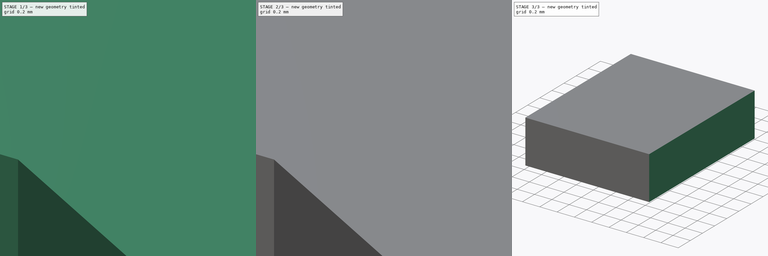
[diagram: build sequence overview — one tinted view per stage of 3, left to right]
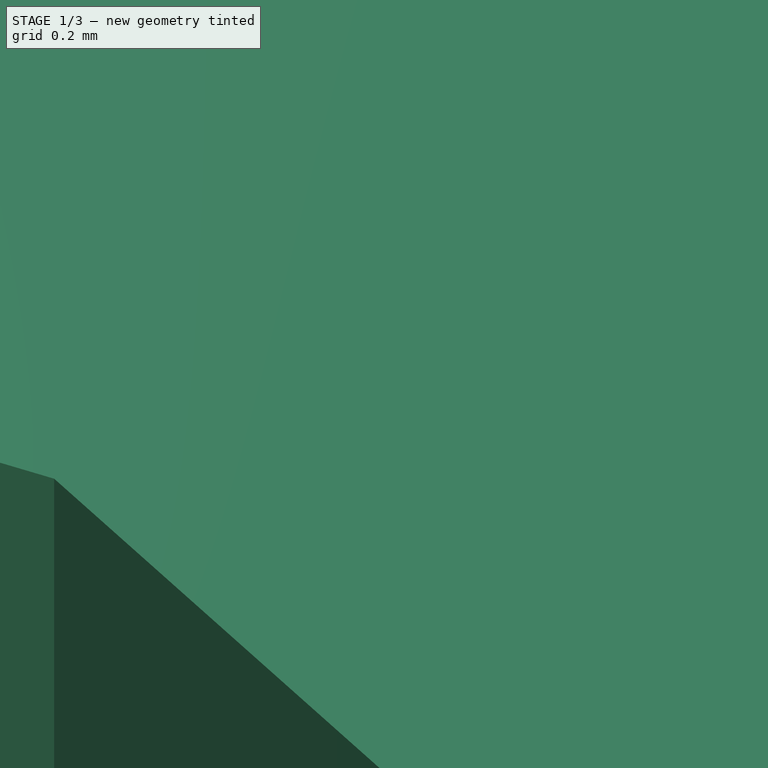
[diagram: stage 1 of 3 — iso view after this stage's code; geometry added in this stage tinted green]
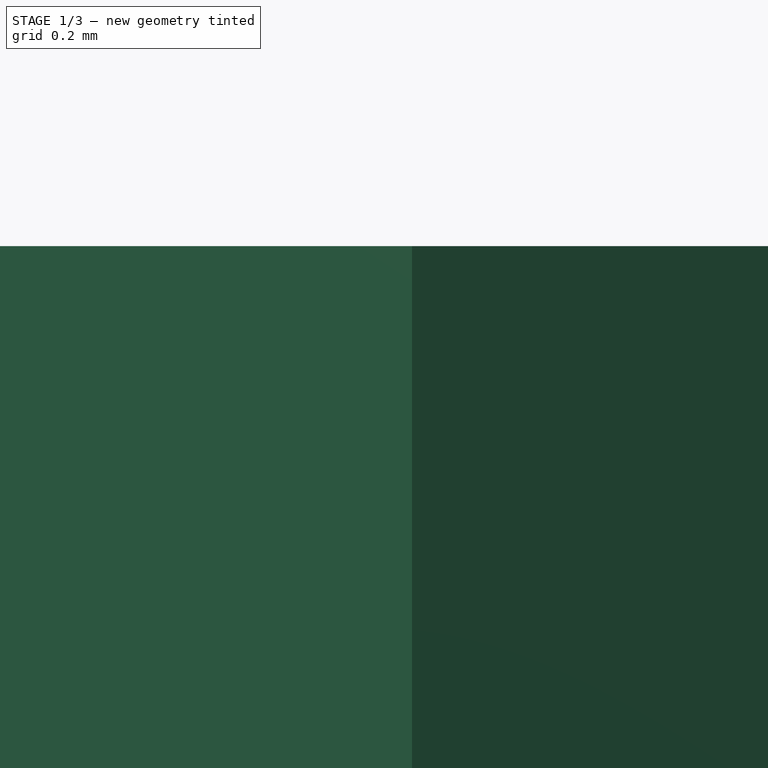
[diagram: stage 1 of 3 — front view after this stage's code; geometry added in this stage tinted green]
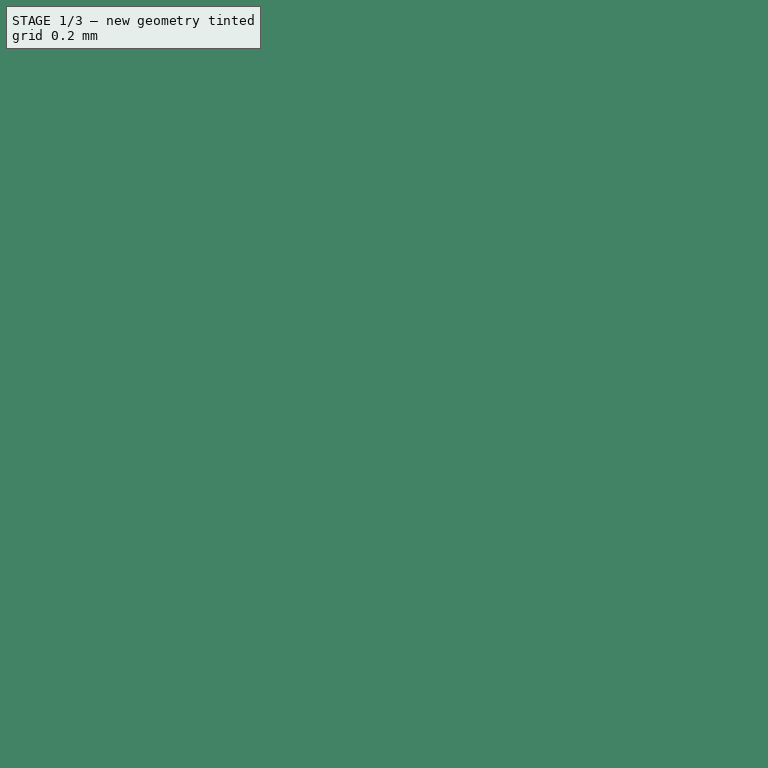
[diagram: stage 1 of 3 — top view after this stage's code; geometry added in this stage tinted green]
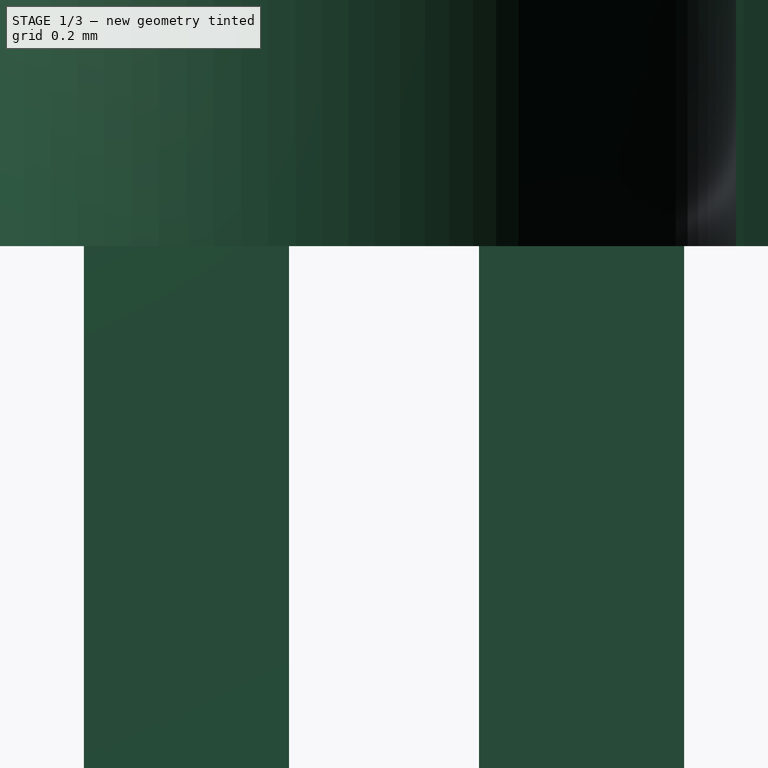
[diagram: stage 1 of 3 — right view after this stage's code; geometry added in this stage tinted green]
FCSTD DOCUMENT  (FreeCAD 1.0R39109 (Git))
Label: KS-2P02B01-02
License: All rights reserved
LicenseURL: https://en.wikipedia.org/wiki/All_rights_reserved
objects: PartDesign::Pad×3, PartDesign::Pocket×3, Sketcher::SketchObject×2, PartDesign::Chamfer×2, PartDesign::Body×2, PartDesign::SubShapeBinder×1
note: 31 computed .brp shape members not serialized (recipe doc carries the construction recipe); baked Part::Feature solids carry a one-line shape summary decoded from their .brp

FEATURE [Sketcher::SketchObject] Sketch  label="Sketch-top"
  ArcFitTolerance = 1e-06
  AttachmentSupport = -> [XY_Plane]
  FullyConstrained = true
  MakeInternals = false
  MapMode = 5
  sketch-geometry (18):
    g0: LineSegment StartX=6.83 StartY=6.87 StartZ=0 EndX=6.83 EndY=2.52 EndZ=0
    g1: LineSegment StartX=6.83 StartY=2.52 StartZ=0 EndX=2.83 EndY=2.52 EndZ=0
    g2: LineSegment StartX=2.83 StartY=2.52 StartZ=0 EndX=0.98 EndY=3.57 EndZ=0
    g3: LineSegment StartX=0.98 StartY=3.57 StartZ=0 EndX=-5.02 EndY=3.57 EndZ=0
    g4: LineSegment StartX=-5.02 StartY=3.57 StartZ=0 EndX=-5.02 EndY=7.92 EndZ=0
    g5: LineSegment StartX=-5.02 StartY=7.92 StartZ=0 EndX=0.98 EndY=7.92 EndZ=0
    g6: LineSegment StartX=0.98 StartY=7.92 StartZ=0 EndX=2.83 EndY=6.87 EndZ=0
    g7: LineSegment StartX=2.83 StartY=6.87 StartZ=0 EndX=6.83 EndY=6.87 EndZ=0
    g8: Circle CenterX=-2.6 CenterY=5.75 CenterZ=0 NormalX=0 NormalY=0 NormalZ=1 AngleXU=0 Radius=1.475
    g9: Circle CenterX=4.4 CenterY=4.69 CenterZ=0 NormalX=0 NormalY=0 NormalZ=1 AngleXU=0 Radius=1.475
    g10: LineSegment StartX=-3.2 StartY=6.025 StartZ=0 EndX=-3.2 EndY=5.475 EndZ=0
    g11: LineSegment StartX=-3.2 StartY=5.475 StartZ=0 EndX=-2 EndY=5.475 EndZ=0
    g12: LineSegment StartX=-2 StartY=5.475 StartZ=0 EndX=-2 EndY=6.025 EndZ=0
    g13: LineSegment StartX=-2 StartY=6.025 StartZ=0 EndX=-3.2 EndY=6.025 EndZ=0
    g14: LineSegment StartX=3.8 StartY=4.965 StartZ=0 EndX=3.8 EndY=4.415 EndZ=0
    g15: LineSegment StartX=3.8 StartY=4.415 StartZ=0 EndX=5 EndY=4.415 EndZ=0
    g16: LineSegment StartX=5 StartY=4.415 StartZ=0 EndX=5 EndY=4.965 EndZ=0
    g17: LineSegment StartX=5 StartY=4.965 StartZ=0 EndX=3.8 EndY=4.965 EndZ=0
  constraints (52):
    c: Vertical(g0)
    c: Coincident(g0,g1)
    c: Horizontal(g1)
    c: Coincident(g1,g2)
    c: Coincident(g2,g3)
    c: Coincident(g3,g4)
    c: Coincident(g4,g5)
    c: Coincident(g5,g6)
    c: Coincident(g6,g7)
    c: Coincident(g7,g0)
    c: Vertical(g4)
    c: Parallel(g2,g6)
    c: Distance(g0,g4) = 11.85
    c: Horizontal(g5)
    c: Horizontal(g3)
    c: Horizontal(g7)
    c: Equal(g7,g1)
    c: Equal(g4,g0)
    c: DistanceX(g7,g7) = 4
    c: DistanceY(g0,g0) = 4.35
    c: Diameter(g8) = 2.95
    c: DistanceX(g5,g5) = 6
    c: Distance(g1,g5) = 5.4
    c: Distance(g8,g4) = 2.42
    c: Distance(g8,g5) = 2.17
    c: Diameter(g9) = 2.95
    c: DistanceX(g8,g9) = 7
    c: Distance(g9,g1) = 2.17
    c: Distance(g8,g-1) = 5.75
    c: Distance(g9,g-2) = 4.4
    c: Coincident(g10,g11)
    c: Coincident(g11,g12)
    c: Coincident(g12,g13)
    c: Coincident(g13,g10)
    c: Vertical(g10)
    c: Vertical(g12)
    c: Horizontal(g11)
    c: Horizontal(g13)
    c: DistanceX(g13,g13) = 1.2
    c: DistanceY(g10,g10) = 0.55
    c: Symmetric(g11,g10,g8)
    c: Coincident(g14,g15)
    c: Coincident(g15,g16)
    c: Coincident(g16,g17)
    c: Coincident(g17,g14)
    c: Vertical(g14)
    c: Vertical(g16)
    c: Horizontal(g15)
    c: Horizontal(g17)
    c: Equal(g17,g13)
    c: Equal(g10,g14)
    c: Symmetric(g15,g14,g9)
FEATURE [PartDesign::Pad] Pad  label="Pad-main"
  Direction = (0,0,1)
  Length = 1.87
  Length2 = 10
  Profile = -> Sketch
  ReferenceAxis = -> Sketch [N_Axis]
  Refine = true
  Suppressed = false
  Type = 0
FEATURE [PartDesign::Pad] Pad001  label="Pad-AB"
  BaseFeature = -> Pad
  Direction = (0,0,1)
  Length = 3
  Length2 = 10
  Profile = -> Sketch [Edge10,Edge9]
  ReferenceAxis = -> Sketch [N_Axis]
  Refine = true
  Suppressed = false
  Type = 0
FEATURE [PartDesign::Pocket] Pocket  label="Pocket-AB-through"
  BaseFeature = -> Pad001
  Direction = (0,0,-1)
  Length = 0
  Length2 = 5
  Profile = -> Sketch [Edge18,Edge15,Edge16,Edge17,Edge13,Edge12,Edge11,Edge14]
  ReferenceAxis = -> Sketch [N_Axis]
  Refine = true
  Suppressed = false
  Type = 3
  UpToFace = -> Pad001 [Face12]
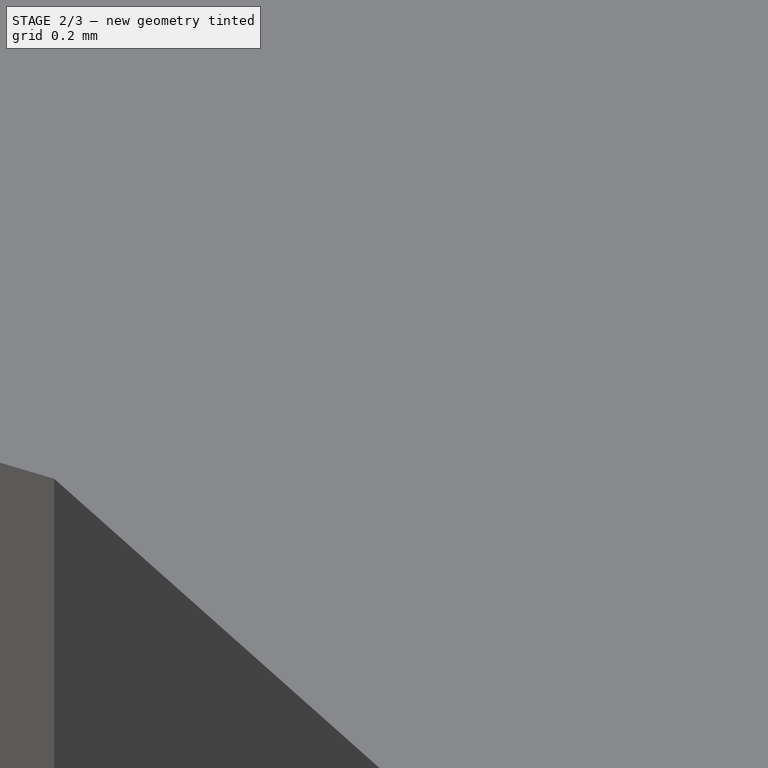
[diagram: stage 2 of 3 — iso view after this stage's code; geometry added in this stage tinted green]
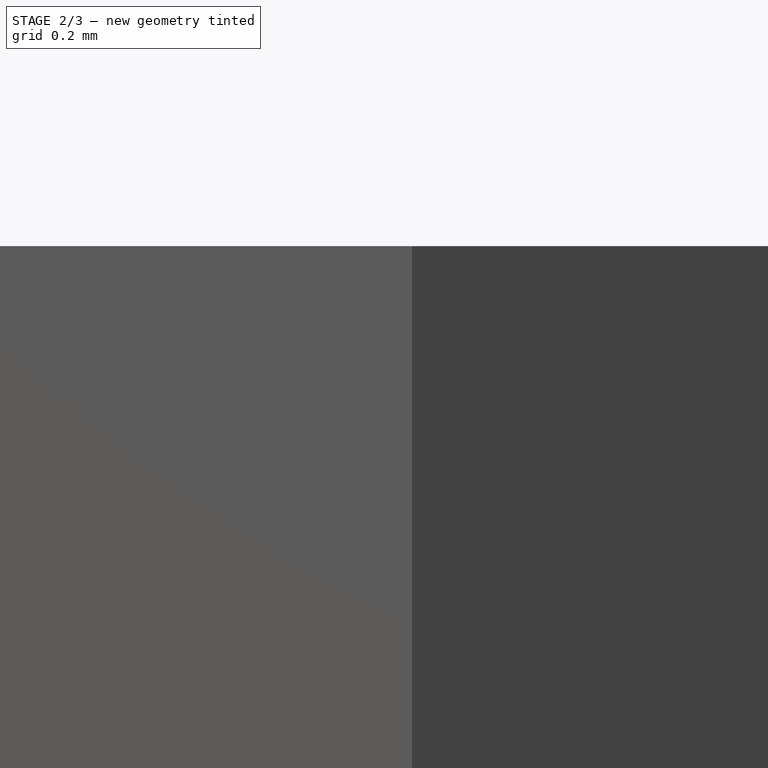
[diagram: stage 2 of 3 — front view after this stage's code; geometry added in this stage tinted green]
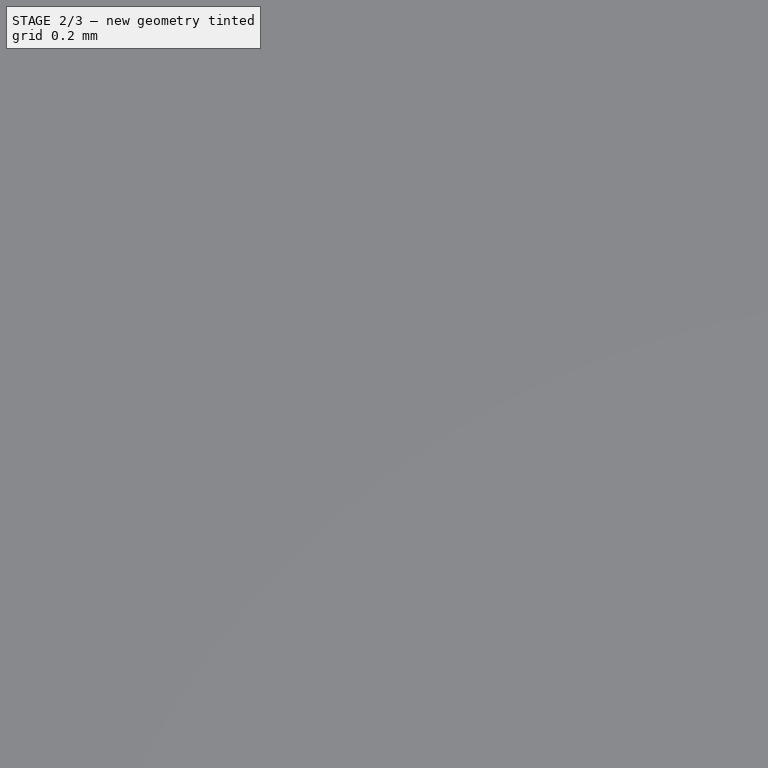
[diagram: stage 2 of 3 — top view after this stage's code; geometry added in this stage tinted green]
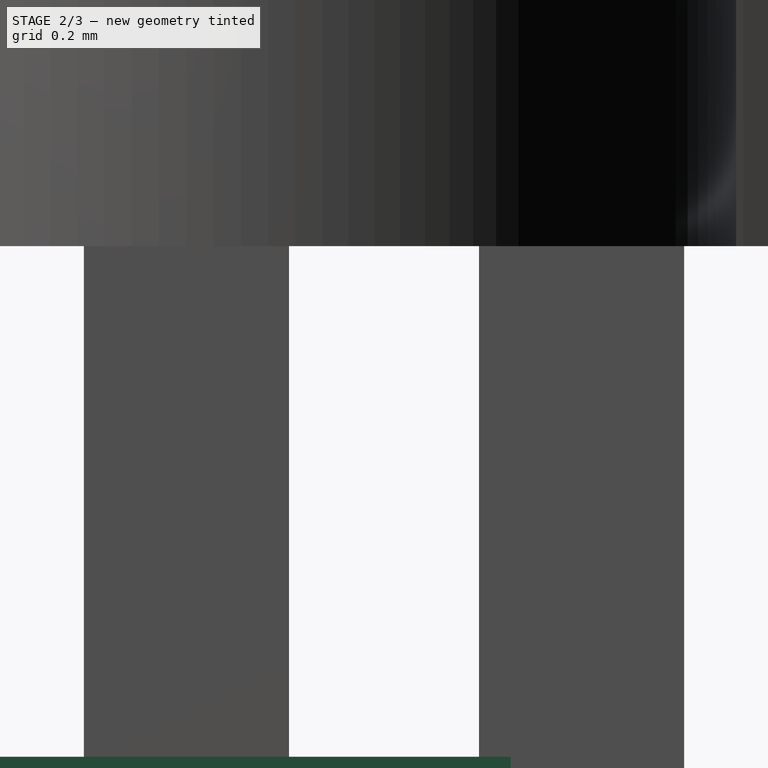
[diagram: stage 2 of 3 — right view after this stage's code; geometry added in this stage tinted green]
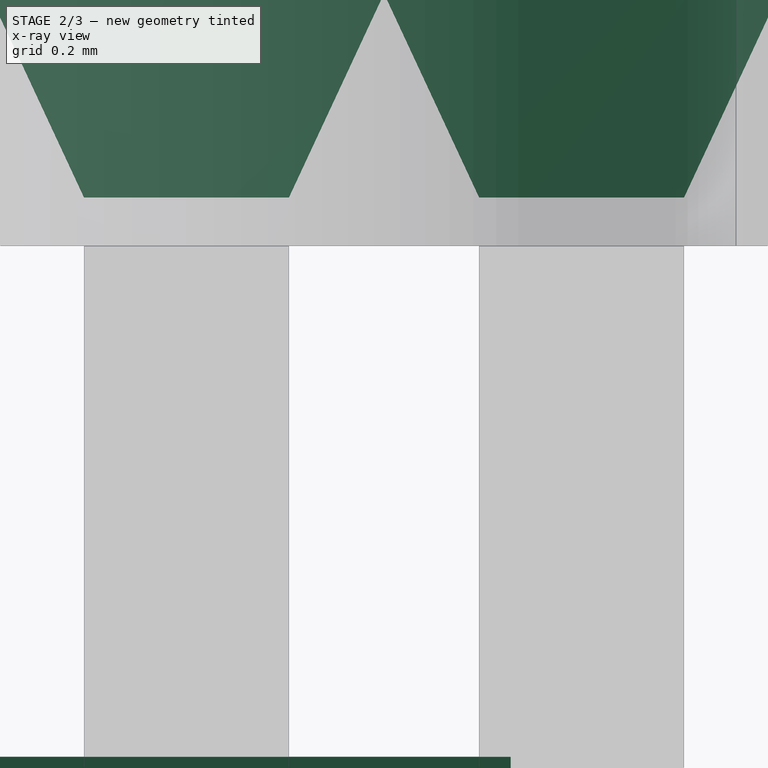
[diagram: stage 2 of 3 — x-ray composite at the right view; earlier geometry ghosted, this stage's added geometry solid]
FEATURE [PartDesign::Chamfer] Chamfer  label="Chamfer-AB"
  Angle = 25
  Base = -> Pocket [Edge42,Edge36,Edge38,Edge40,Edge44,Edge50,Edge48,Edge46]
  BaseFeature = -> Pocket
  ChamferType = 2
  FlipDirection = false
  Refine = true
  Size = 1
  Size2 = 1
  SupportTransform = false
  Suppressed = false
  UseAllEdges = false
FEATURE [Sketcher::SketchObject] Sketch001  label="Sketch-bottom"
  ArcFitTolerance = 1e-06
  AttachmentSupport = -> [Chamfer]
  ExternalGeometry = -> [Sketch]
  FullyConstrained = true
  MakeInternals = false
  MapMode = 5
  Placement = pos=(0,0,0) rot=(1,0,0;3.14159rad)
  sketch-geometry (16):
    g0: LineSegment StartX=-3.6 StartY=-4.75 StartZ=0 EndX=-3.6 EndY=-6.75 EndZ=0
    g1: LineSegment StartX=-3.6 StartY=-6.75 StartZ=0 EndX=-1.6 EndY=-6.75 EndZ=0
    g2: LineSegment StartX=-1.6 StartY=-6.75 StartZ=0 EndX=-1.6 EndY=-4.75 EndZ=0
    g3: LineSegment StartX=-1.6 StartY=-4.75 StartZ=0 EndX=-3.6 EndY=-4.75 EndZ=0
    g4: LineSegment StartX=3.4 StartY=-3.69 StartZ=0 EndX=3.4 EndY=-5.69 EndZ=0
    g5: LineSegment StartX=3.4 StartY=-5.69 StartZ=0 EndX=5.4 EndY=-5.69 EndZ=0
    g6: LineSegment StartX=5.4 StartY=-5.69 StartZ=0 EndX=5.4 EndY=-3.69 EndZ=0
    g7: LineSegment StartX=5.4 StartY=-3.69 StartZ=0 EndX=3.4 EndY=-3.69 EndZ=0
    g8: LineSegment StartX=-5.02 StartY=-4.88 StartZ=0 EndX=-5.02 EndY=-6.62 EndZ=0
    g9: LineSegment StartX=-5.02 StartY=-6.62 StartZ=0 EndX=-3.6 EndY=-6.62 EndZ=0
    g10: LineSegment StartX=-3.6 StartY=-6.62 StartZ=0 EndX=-3.6 EndY=-4.88 EndZ=0
    g11: LineSegment StartX=-3.6 StartY=-4.88 StartZ=0 EndX=-5.02 EndY=-4.88 EndZ=0
    g12: LineSegment StartX=5.4 StartY=-3.82 StartZ=0 EndX=5.4 EndY=-5.56 EndZ=0
    g13: LineSegment StartX=5.4 StartY=-5.56 StartZ=0 EndX=6.83 EndY=-5.56 EndZ=0
    g14: LineSegment StartX=6.83 StartY=-5.56 StartZ=0 EndX=6.83 EndY=-3.82 EndZ=0
    g15: LineSegment StartX=6.83 StartY=-3.82 StartZ=0 EndX=5.4 EndY=-3.82 EndZ=0
  constraints (46):
    c: Coincident(g0,g1)
    c: Coincident(g1,g2)
    c: Coincident(g2,g3)
    c: Coincident(g3,g0)
    c: Vertical(g0)
    c: Vertical(g2)
    c: Horizontal(g1)
    c: Horizontal(g3)
    c: Coincident(g4,g5)
    c: Coincident(g5,g6)
    c: Coincident(g6,g7)
    c: Coincident(g7,g4)
    c: Vertical(g4)
    c: Vertical(g6)
    c: Horizontal(g5)
    c: Horizontal(g7)
    c: Equal(g3,g7)
    c: Equal(g2,g6)
    c: Symmetric(g0,g1,g-3)
    c: Symmetric(g4,g5,g-4)
    c: DistanceX(g3,g3) = 2
    c: DistanceY(g0,g0) = 2
    c: Coincident(g8,g9)
    c: Coincident(g9,g10)
    c: Coincident(g10,g11)
    c: Coincident(g11,g8)
    c: Vertical(g8)
    c: Vertical(g10)
    c: Horizontal(g9)
    c: Horizontal(g11)
    c: PointOnObject(g8,g-5)
    c: PointOnObject(g9,g0)
    c: Coincident(g12,g13)
    c: Coincident(g13,g14)
    c: Coincident(g14,g15)
    c: Coincident(g15,g12)
    c: Vertical(g12)
    c: Vertical(g14)
    c: Horizontal(g13)
    c: Horizontal(g15)
    c: PointOnObject(g12,g6)
    c: PointOnObject(g13,g-6)
    c: Equal(g8,g14)
    c: DistanceY(g8,g8) = 1.74
    c: Distance(g1,g9) = 0.13
    c: Distance(g5,g13) = 0.13
FEATURE [PartDesign::Pocket] Pocket001  label="Pocket-bottom-1"
  BaseFeature = -> Chamfer
  Direction = (0,0,1)
  Length = 0.5
  Length2 = 5
  Profile = -> Sketch001 [Edge14,Edge15,Edge16,Edge13,Edge11,Edge9,Edge12,Edge10]
  ReferenceAxis = -> Sketch001 [N_Axis]
  Refine = true
  Suppressed = false
  Type = 0
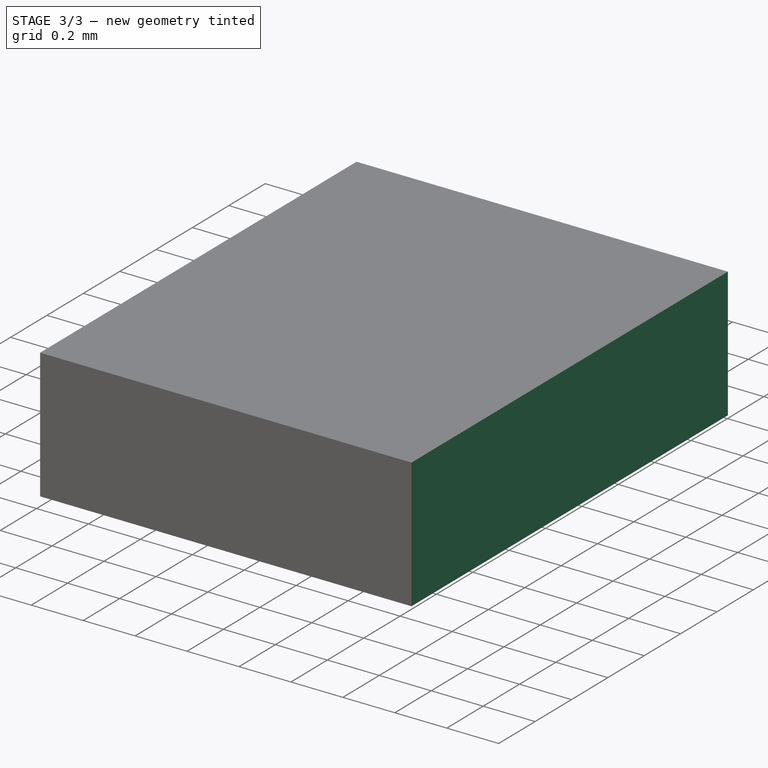
[diagram: stage 3 of 3 — iso view after this stage's code; geometry added in this stage tinted green]
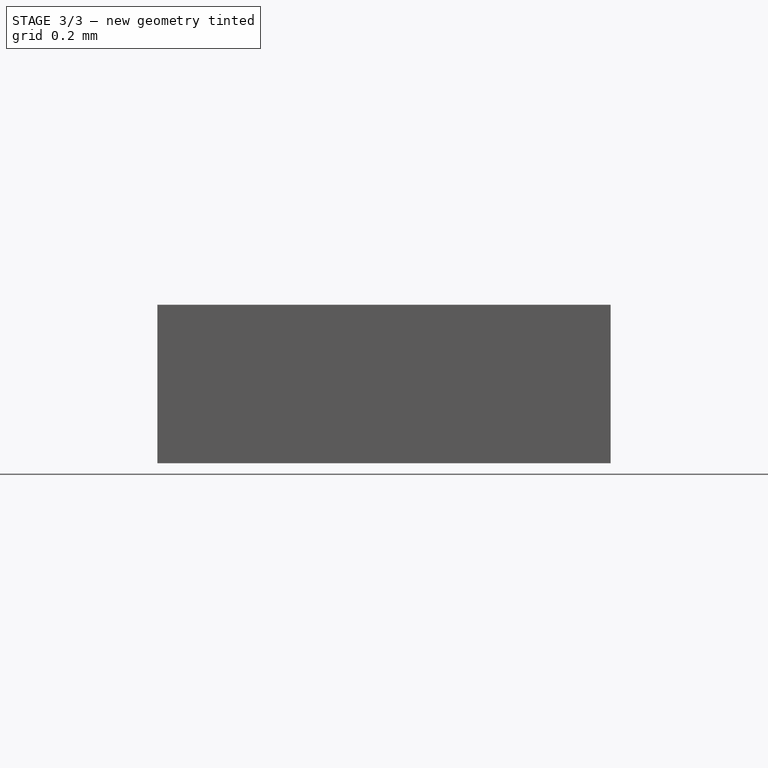
[diagram: stage 3 of 3 — front view after this stage's code; geometry added in this stage tinted green]
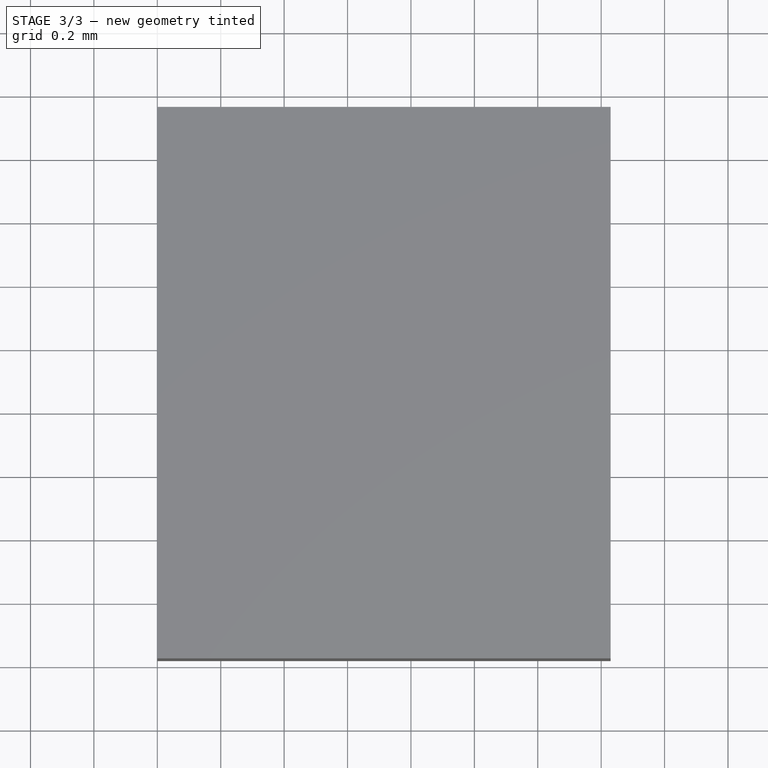
[diagram: stage 3 of 3 — top view after this stage's code; geometry added in this stage tinted green]
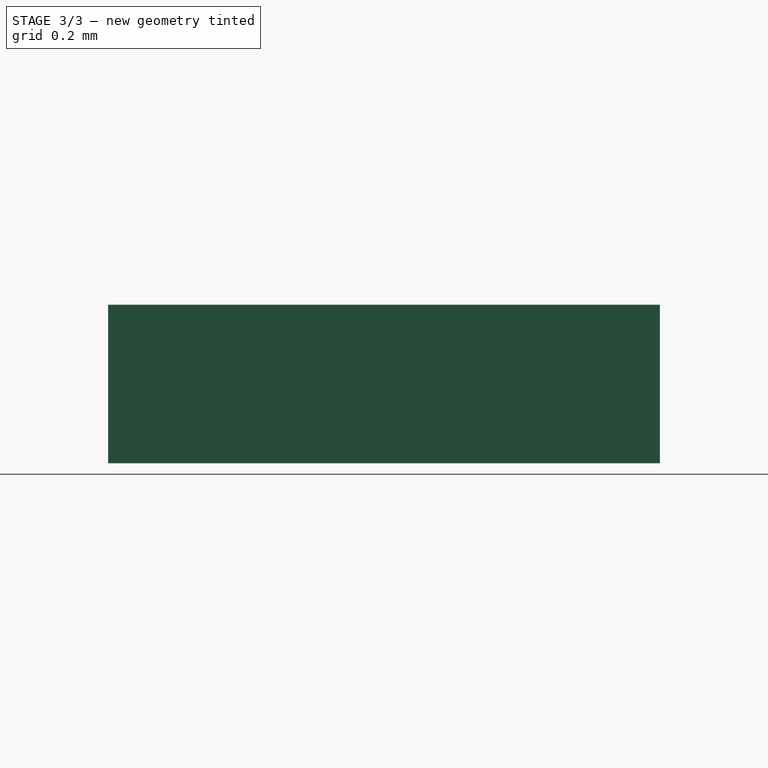
[diagram: stage 3 of 3 — right view after this stage's code; geometry added in this stage tinted green]
FEATURE [PartDesign::Pocket] Pocket002  label="Pocket-bottom-2"
  BaseFeature = -> Pocket001
  Direction = (0,0,1)
  Length = 1
  Length2 = 5
  Profile = -> Sketch001 [Edge2,Edge1,Edge4,Edge3,Edge5,Edge8,Edge7,Edge6]
  ReferenceAxis = -> Sketch001 [N_Axis]
  Refine = true
  Suppressed = false
  Type = 0
FEATURE [PartDesign::Chamfer] Chamfer001
  Angle = 45
  Base = -> Pocket002 [Edge32,Edge30,Edge45,Edge47]
  BaseFeature = -> Pocket002
  ChamferType = 0
  FlipDirection = false
  Refine = true
  Size = 0.5
  Size2 = 1
  SupportTransform = false
  Suppressed = false
  UseAllEdges = false
FEATURE [PartDesign::Body] Body  label="Plastic"
  AllowCompound = false
  Group = -> [Sketch,Pad,Pad001,Pocket,Chamfer,Sketch001,Pocket001,Pocket002,Chamfer001]
  Origin = -> Origin
  Tip = -> Chamfer001
FEATURE [PartDesign::SubShapeBinder] Binder
  BindCopyOnChange = 0
  BindMode = 0
  ClaimChildren = false
  Context = -> Body001 [Binder.]
  Fuse = false
  MakeFace = true
  OffsetFill = false
  OffsetIntersection = false
  OffsetJoinType = 0
  OffsetOpenResult = false
  PartialLoad = false
  Refine = true
  Relative = true
  Support = -> [Body[Chamfer001.Face29]]
  _Version = 2
FEATURE [PartDesign::Pad] Pad002
  Direction = (0,0,-1)
  Length = 0.5
  Length2 = 10
  Profile = -> Binder
  Refine = true
  Suppressed = false
  Type = 0
FEATURE [PartDesign::Body] Body001  label="Pin-A"
  AllowCompound = false
  Group = -> [Binder,Pad002]
  Origin = -> Origin001
  Tip = -> Pad002
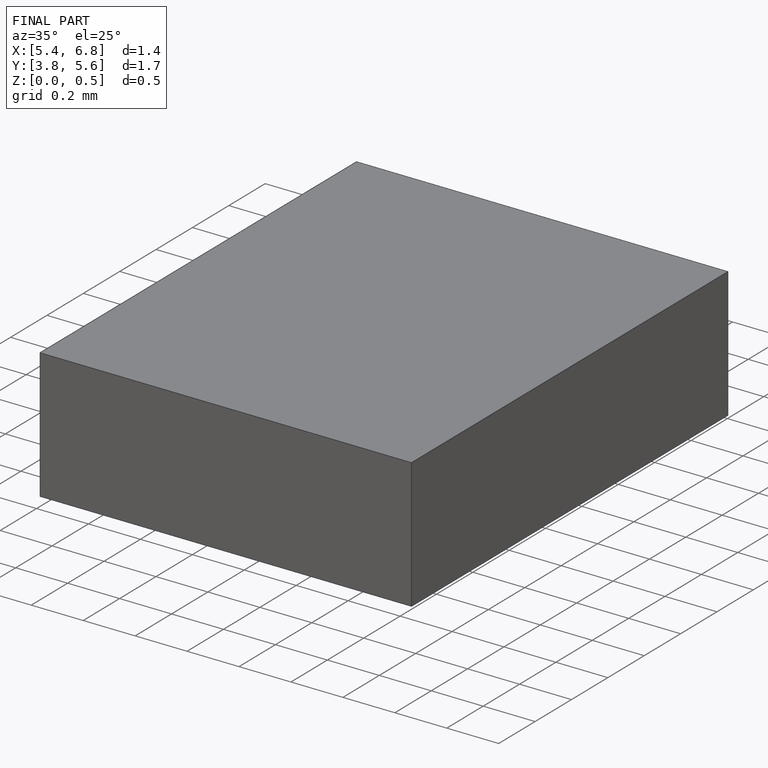
[diagram: finished part — iso view with bounding-box wireframe]
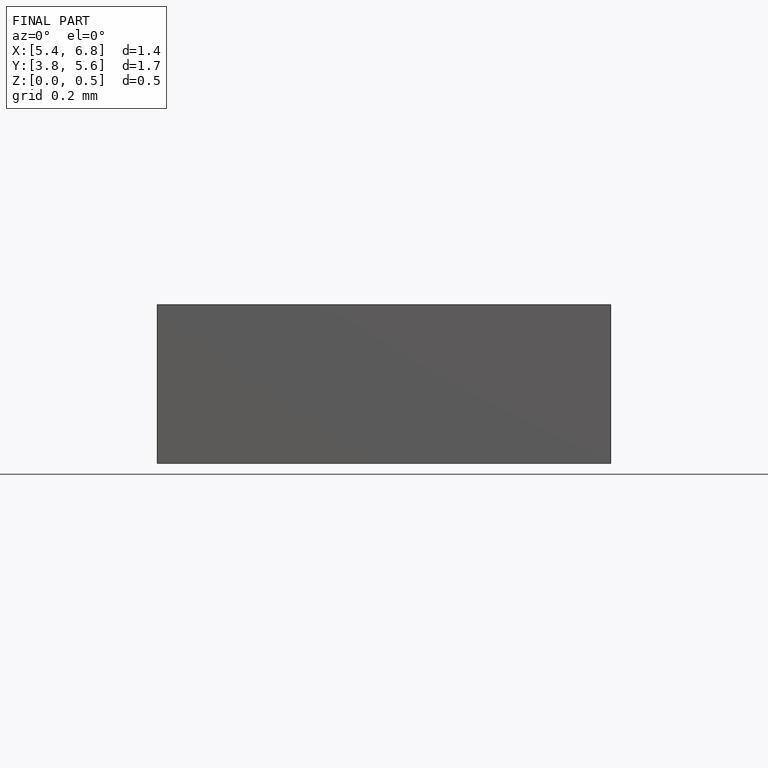
[diagram: finished part — front view with bounding-box wireframe]
